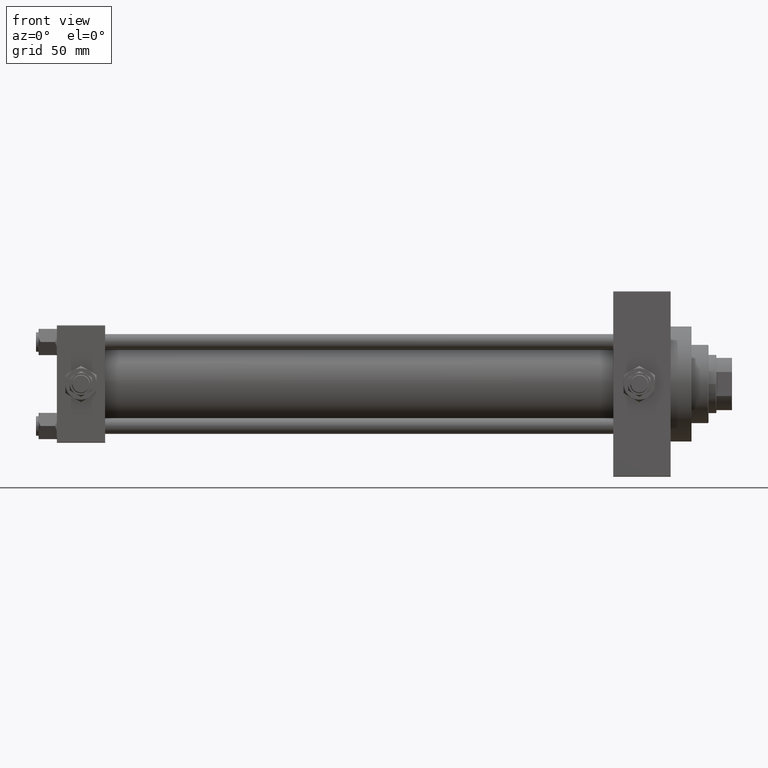
[diagram: clean part render]
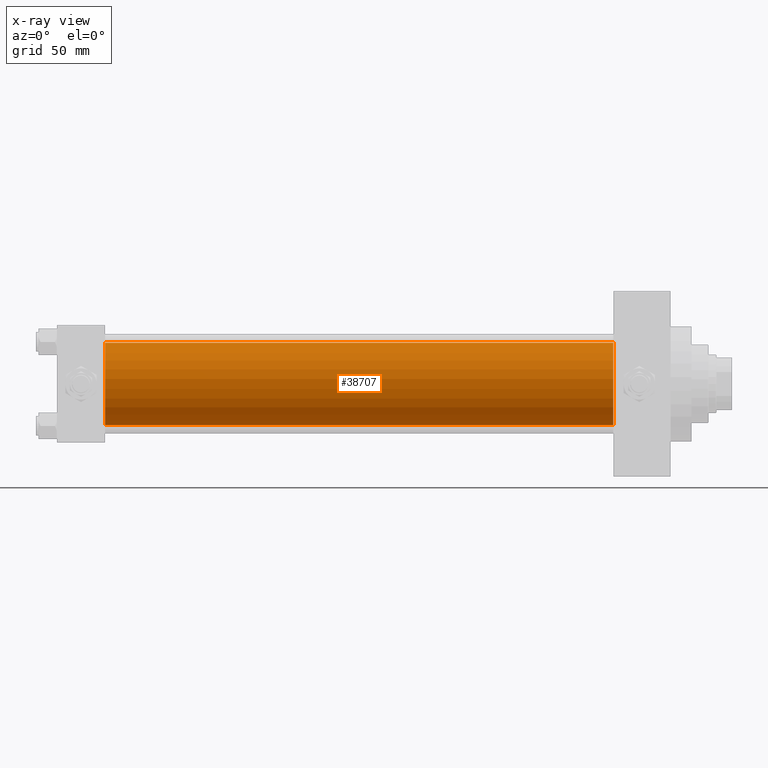
[diagram: x-ray — body ghosted, one internal face saturated and labeled with its STEP entity id]
A machine part, front view, then the same camera in x-ray: the body is ghosted and one INTERNAL B-rep face — a face not visible from any outside direction — is saturated and labeled: STEP entity #38707.
In plain terms, the highlighted cylindrical surface (partial cylindrical patch) has radius 31.5 mm, axis along (-1, -0, -0).
Its self-contained STEP definition (entity closure, byte-faithful):
#2431 = CARTESIAN_POINT ( 'NONE',  ( 426.0000000000000000, -2.602085213965210642E-15, 31.50000000000000000 ) ) ;
#4932 = CARTESIAN_POINT ( 'NONE',  ( 426.0000000000000000, -2.602085213965210642E-15, 0.000000000000000000 ) ) ;
#5323 = VERTEX_POINT ( 'NONE', #23913 ) ;
#5604 = CARTESIAN_POINT ( 'NONE',  ( 426.0000000000000000, 1.255552203348951850E-15, -31.50000000000000000 ) ) ;
#6389 = DIRECTION ( 'NONE',  ( 1.000000000000000000, 0.000000000000000000, 0.000000000000000000 ) ) ;
#7232 = CIRCLE ( 'NONE', #44615, 31.50000000000000000 ) ;
#8305 = CARTESIAN_POINT ( 'NONE',  ( 426.0000000000000000, -2.602085213965210642E-15, 0.000000000000000000 ) ) ;
#11111 = ORIENTED_EDGE ( 'NONE', *, *, #33445, .T. ) ;
#11820 = DIRECTION ( 'NONE',  ( 0.000000000000000000, 0.000000000000000000, -1.000000000000000000 ) ) ;
#12156 = DIRECTION ( 'NONE',  ( -1.000000000000000000, -0.000000000000000000, -0.000000000000000000 ) ) ;
#14402 = CARTESIAN_POINT ( 'NONE',  ( 426.0000000000000000, -2.602085213965210642E-15, 31.50000000000000000 ) ) ;
#15667 = VERTEX_POINT ( 'NONE', #18718 ) ;
#16117 = CYLINDRICAL_SURFACE ( 'NONE', #18103, 31.50000000000000000 ) ;
#17331 = CARTESIAN_POINT ( 'NONE',  ( 37.00000000000000000, -2.602085213965210642E-15, 0.000000000000000000 ) ) ;
#18103 = AXIS2_PLACEMENT_3D ( 'NONE', #4932, #12156, #27316 ) ;
#18718 = CARTESIAN_POINT ( 'NONE',  ( 37.00000000000000000, 1.255552203348951850E-15, -31.50000000000000000 ) ) ;
#19238 = ORIENTED_EDGE ( 'NONE', *, *, #32840, .F. ) ;
#19846 = FACE_OUTER_BOUND ( 'NONE', #36132, .T. ) ;
#20655 = CIRCLE ( 'NONE', #25448, 31.50000000000000000 ) ;
#23882 = CARTESIAN_POINT ( 'NONE',  ( 426.0000000000000000, 1.255552203348951850E-15, -31.50000000000000000 ) ) ;
#23913 = CARTESIAN_POINT ( 'NONE',  ( 37.00000000000000000, -2.602085213965210642E-15, 31.50000000000000000 ) ) ;
#24247 = DIRECTION ( 'NONE',  ( -1.000000000000000000, -0.000000000000000000, -0.000000000000000000 ) ) ;
#25448 = AXIS2_PLACEMENT_3D ( 'NONE', #17331, #6389, #47465 ) ;
#25598 = LINE ( 'NONE', #14402, #28671 ) ;
#27316 = DIRECTION ( 'NONE',  ( 0.000000000000000000, 0.000000000000000000, 1.000000000000000000 ) ) ;
#27461 = DIRECTION ( 'NONE',  ( 1.000000000000000000, 0.000000000000000000, 0.000000000000000000 ) ) ;
#28087 = ORIENTED_EDGE ( 'NONE', *, *, #44458, .F. ) ;
#28563 = VECTOR ( 'NONE', #24247, 1000.000000000000000 ) ;
#28671 = VECTOR ( 'NONE', #36818, 1000.000000000000000 ) ;
#30415 = EDGE_CURVE ( 'NONE', #34860, #15667, #43711, .T. ) ;
#32840 = EDGE_CURVE ( 'NONE', #45406, #5323, #25598, .T. ) ;
#33445 = EDGE_CURVE ( 'NONE', #45406, #34860, #7232, .T. ) ;
#34860 = VERTEX_POINT ( 'NONE', #23882 ) ;
#36132 = EDGE_LOOP ( 'NONE', ( #11111, #43905, #28087, #19238 ) ) ;
#36818 = DIRECTION ( 'NONE',  ( -1.000000000000000000, -0.000000000000000000, -0.000000000000000000 ) ) ;
#38707 = ADVANCED_FACE ( 'NONE', ( #19846 ), #16117, .F. ) ;
#43711 = LINE ( 'NONE', #5604, #28563 ) ;
#43905 = ORIENTED_EDGE ( 'NONE', *, *, #30415, .T. ) ;
#44458 = EDGE_CURVE ( 'NONE', #5323, #15667, #20655, .T. ) ;
#44615 = AXIS2_PLACEMENT_3D ( 'NONE', #8305, #27461, #11820 ) ;
#45406 = VERTEX_POINT ( 'NONE', #2431 ) ;
#47465 = DIRECTION ( 'NONE',  ( 0.000000000000000000, 0.000000000000000000, -1.000000000000000000 ) ) ;